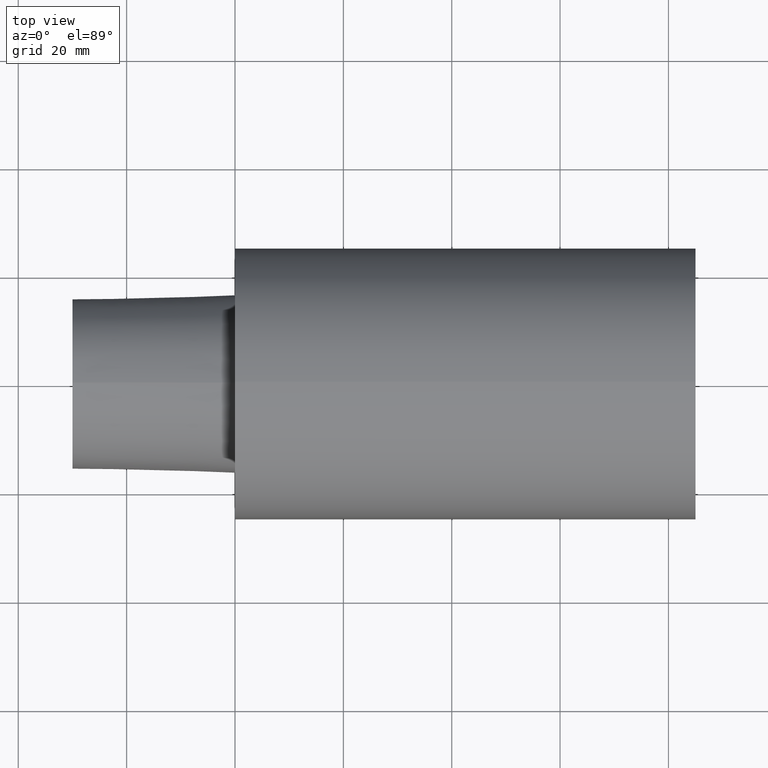
[diagram: clean part render]
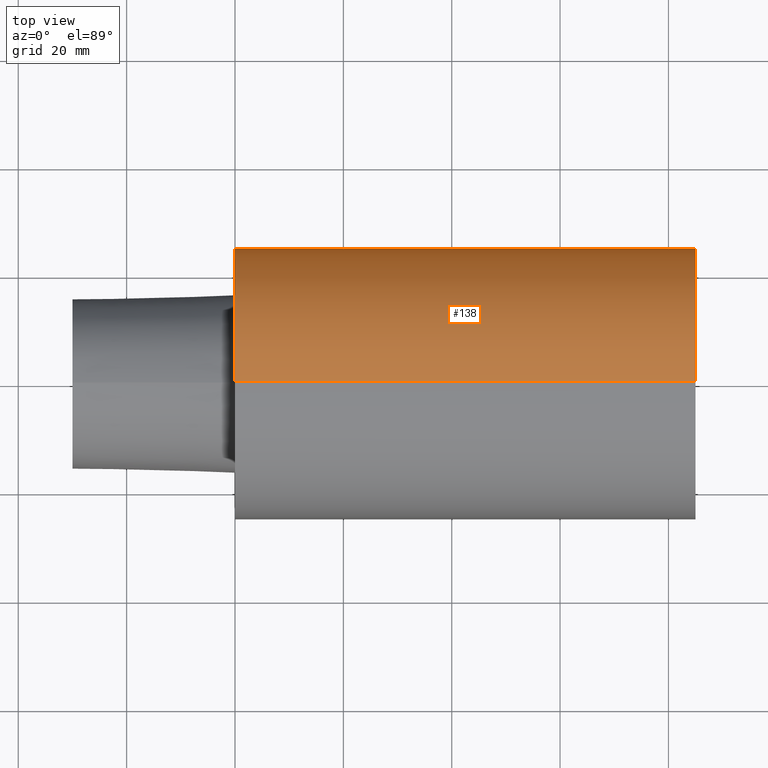
[diagram: same view with one face highlighted and labeled with its STEP entity id]
A machine part, top view. The second image highlights one B-rep face of the part: STEP entity #138.
In plain terms, the highlighted cylindrical surface (partial cylindrical patch) has radius 25 mm, axis along (-1, 0, 0).
Its self-contained STEP definition (entity closure, byte-faithful):
#10 = ORIENTED_EDGE ( 'NONE', *, *, #240, .F. ) ;
#11 = VERTEX_POINT ( 'NONE', #223 ) ;
#17 = DIRECTION ( 'NONE',  ( -1.000000000000000000, 0.000000000000000000, 0.000000000000000000 ) ) ;
#20 = CIRCLE ( 'NONE', #97, 24.99999997449999967 ) ;
#28 = VECTOR ( 'NONE', #141, 1000.000000000000000 ) ;
#32 = VERTEX_POINT ( 'NONE', #221 ) ;
#53 = CARTESIAN_POINT ( 'NONE',  ( -29.99999996940000102, 3.061616994745535943E-15, -24.99999997449999967 ) ) ;
#63 = CIRCLE ( 'NONE', #192, 24.99999997449999967 ) ;
#69 = ORIENTED_EDGE ( 'NONE', *, *, #213, .T. ) ;
#71 = VERTEX_POINT ( 'NONE', #166 ) ;
#79 = CARTESIAN_POINT ( 'NONE',  ( 84.99999991329998750, 0.000000000000000000, 0.000000000000000000 ) ) ;
#91 = EDGE_LOOP ( 'NONE', ( #150, #69, #152, #10 ) ) ;
#95 = EDGE_CURVE ( 'NONE', #71, #202, #63, .T. ) ;
#97 = AXIS2_PLACEMENT_3D ( 'NONE', #79, #232, #196 ) ;
#101 = AXIS2_PLACEMENT_3D ( 'NONE', #212, #17, #215 ) ;
#115 = CARTESIAN_POINT ( 'NONE',  ( 0.000000000000000000, 0.000000000000000000, 0.000000000000000000 ) ) ;
#121 = EDGE_CURVE ( 'NONE', #32, #11, #20, .T. ) ;
#134 = DIRECTION ( 'NONE',  ( -1.000000000000000000, 0.000000000000000000, 0.000000000000000000 ) ) ;
#136 = FACE_OUTER_BOUND ( 'NONE', #91, .T. ) ;
#138 = ADVANCED_FACE ( 'NONE', ( #136 ), #158, .T. ) ;
#141 = DIRECTION ( 'NONE',  ( -1.000000000000000000, 0.000000000000000000, 0.000000000000000000 ) ) ;
#143 = LINE ( 'NONE', #177, #28 ) ;
#150 = ORIENTED_EDGE ( 'NONE', *, *, #121, .T. ) ;
#152 = ORIENTED_EDGE ( 'NONE', *, *, #95, .F. ) ;
#154 = LINE ( 'NONE', #53, #230 ) ;
#158 = CYLINDRICAL_SURFACE ( 'NONE', #101, 24.99999997449999967 ) ;
#166 = CARTESIAN_POINT ( 'NONE',  ( 0.000000000000000000, 0.000000000000000000, 24.99999997449999967 ) ) ;
#177 = CARTESIAN_POINT ( 'NONE',  ( -29.99999996940000102, 0.000000000000000000, 24.99999997449999967 ) ) ;
#192 = AXIS2_PLACEMENT_3D ( 'NONE', #115, #228, #197 ) ;
#196 = DIRECTION ( 'NONE',  ( 0.000000000000000000, 0.000000000000000000, 1.000000000000000000 ) ) ;
#197 = DIRECTION ( 'NONE',  ( 0.000000000000000000, 0.000000000000000000, 1.000000000000000000 ) ) ;
#202 = VERTEX_POINT ( 'NONE', #254 ) ;
#212 = CARTESIAN_POINT ( 'NONE',  ( -29.99999996940000102, 0.000000000000000000, 0.000000000000000000 ) ) ;
#213 = EDGE_CURVE ( 'NONE', #11, #202, #154, .T. ) ;
#215 = DIRECTION ( 'NONE',  ( 0.000000000000000000, 0.000000000000000000, 1.000000000000000000 ) ) ;
#221 = CARTESIAN_POINT ( 'NONE',  ( 84.99999991329998750, 0.000000000000000000, 24.99999997449999967 ) ) ;
#223 = CARTESIAN_POINT ( 'NONE',  ( 84.99999991329998750, 3.061616994745535943E-15, -24.99999997449999967 ) ) ;
#228 = DIRECTION ( 'NONE',  ( -1.000000000000000000, 0.000000000000000000, 0.000000000000000000 ) ) ;
#230 = VECTOR ( 'NONE', #134, 1000.000000000000000 ) ;
#232 = DIRECTION ( 'NONE',  ( -1.000000000000000000, 0.000000000000000000, 0.000000000000000000 ) ) ;
#240 = EDGE_CURVE ( 'NONE', #32, #71, #143, .T. ) ;
#254 = CARTESIAN_POINT ( 'NONE',  ( 0.000000000000000000, 3.061616994745535943E-15, -24.99999997449999967 ) ) ;